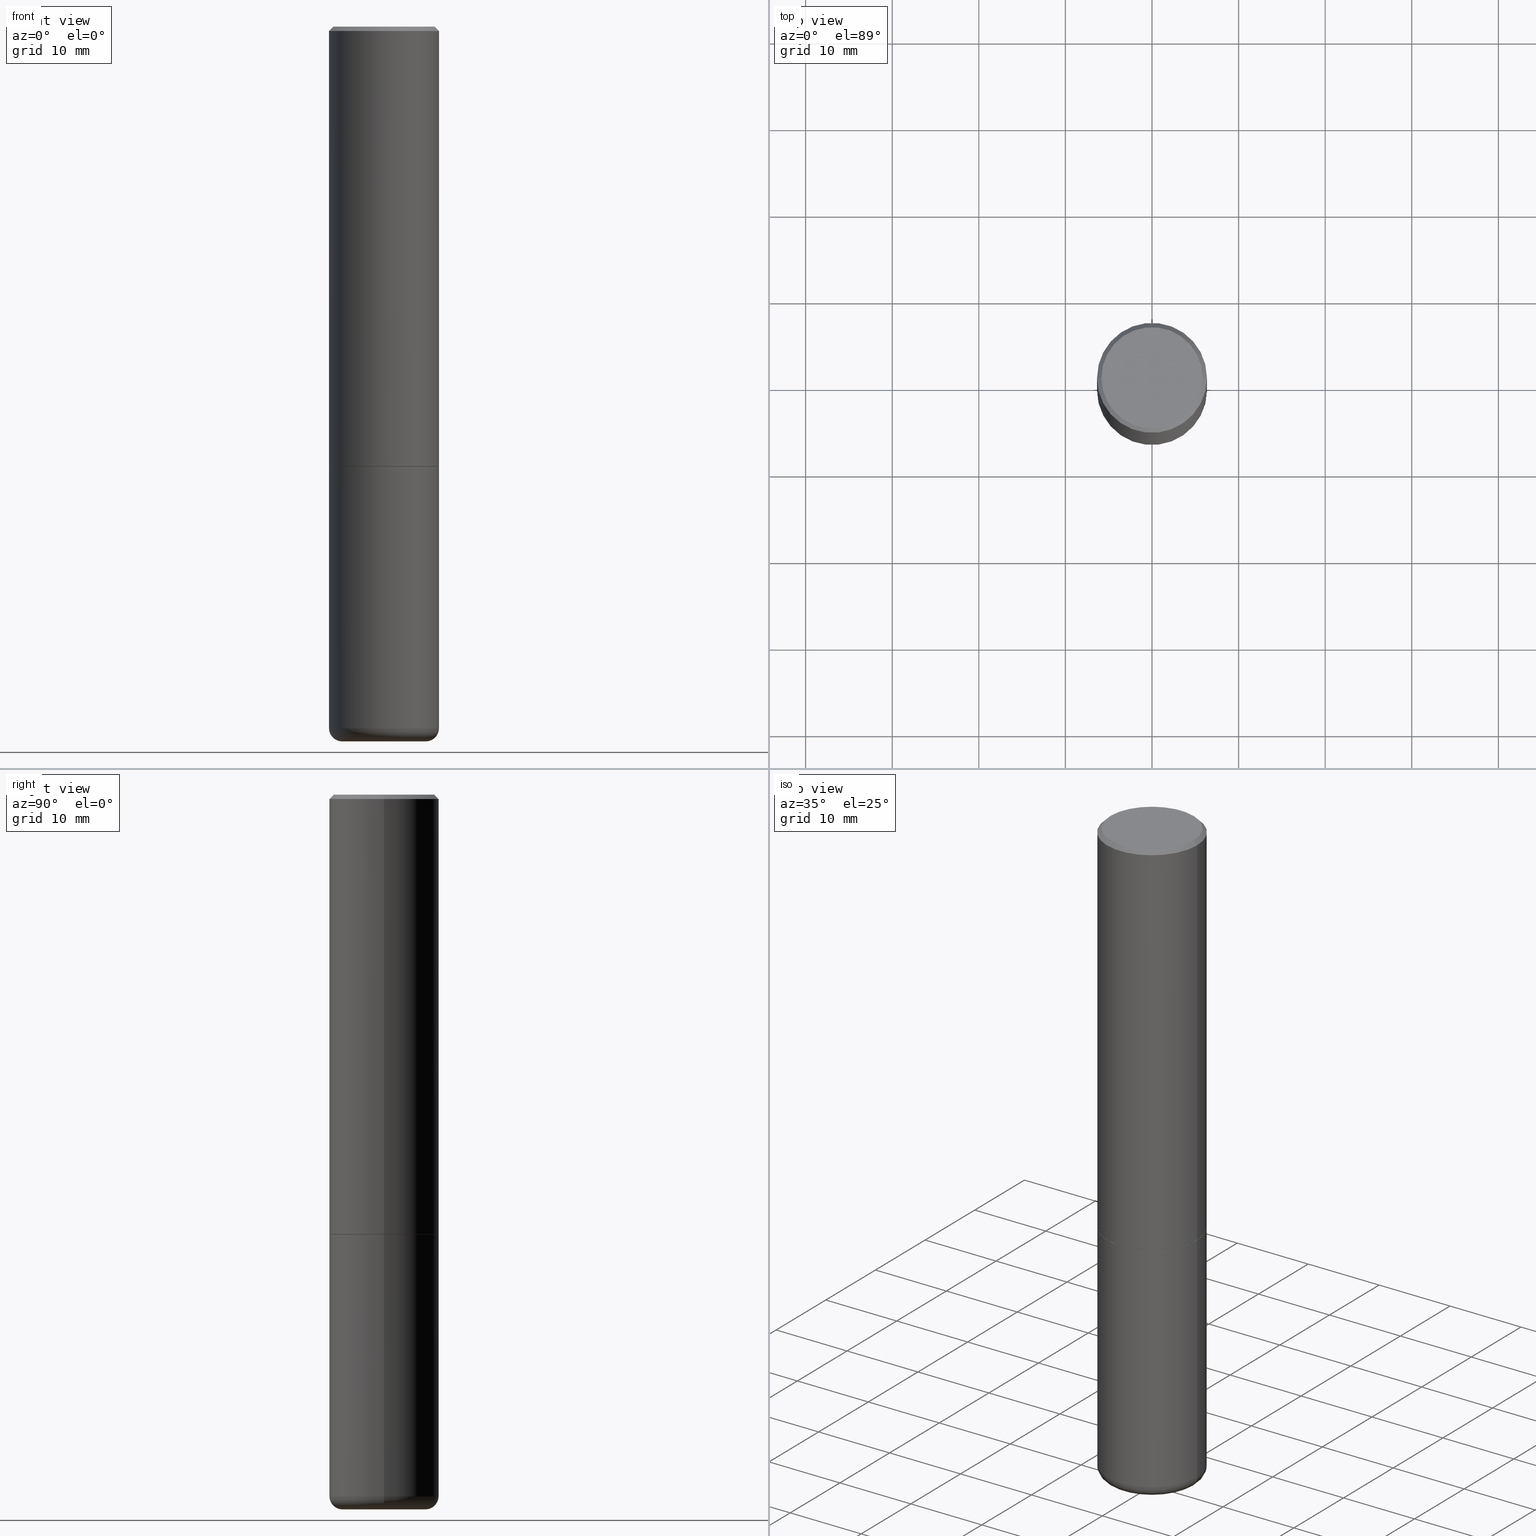
[diagram: canonical four-view strip — front | top / right | iso, engineering-drawing reading convention]
A machine part, canonical four-view strip (front | top / right | iso — engineering-drawing reading convention). The complete STEP part file that produces these views, byte-faithful:
ISO-10303-21;
HEADER;
FILE_DESCRIPTION (( 'STEP AP203' ),
    '1' );
FILE_NAME ('77181.STEP',
    '2024-03-06T16:18:55',
    ( '' ),
    ( '' ),
    'SwSTEP 2.0',
    'SolidWorks 2023',
    '' );
FILE_SCHEMA (( 'CONFIG_CONTROL_DESIGN' ));
ENDSEC;

DATA;
#1 = CARTESIAN_POINT ( 'NONE',  ( 4.890937612370287172E-31, -6.982962677686310098E-17, -0.02000000000000005593 ) ) ;
#2 = EDGE_LOOP ( 'NONE', ( #138, #159, #92, #378 ) ) ;
#3 = CYLINDRICAL_SURFACE ( 'NONE', #415, 0.2500000000000000000 ) ;
#4 = ORIENTED_EDGE ( 'NONE', *, *, #344, .T. ) ;
#5 = VECTOR ( 'NONE', #80, 39.37007874015748143 ) ;
#6 = CLOSED_SHELL ( 'NONE', ( #356, #90, #116, #85, #9, #34 ) ) ;
#7 = AXIS2_PLACEMENT_3D ( 'NONE', #236, #207, #141 ) ;
#8 = LENGTH_MEASURE_WITH_UNIT ( LENGTH_MEASURE( 0.02539999999999999897 ), #169 );
#9 = ADVANCED_FACE ( 'NONE', ( #264 ), #396, .T. ) ;
#10 = FACE_OUTER_BOUND ( 'NONE', #166, .T. ) ;
#11 = DIRECTION ( 'NONE',  ( -2.445468806185136597E-29, 3.491481338843145583E-15, 1.000000000000000000 ) ) ;
#12 = DIRECTION ( 'NONE',  ( 1.000000000000000000, -6.982962677686265133E-15, 4.883557194083112340E-29 ) ) ;
#13 = AXIS2_PLACEMENT_3D ( 'NONE', #325, #11, #273 ) ;
#14 = EDGE_CURVE ( 'NONE', #63, #128, #160, .T. ) ;
#15 = CARTESIAN_POINT ( 'NONE',  ( -0.2500000000000000000, -7.284037234897712778E-15, -2.000000000000000000 ) ) ;
#16 = PLANE ( 'NONE',  #173 ) ;
#17 = COORDINATED_UNIVERSAL_TIME_OFFSET ( 5, 0, .BEHIND. ) ;
#18 = ORIENTED_EDGE ( 'NONE', *, *, #316, .T. ) ;
#19 = CIRCLE ( 'NONE', #25, 0.1899999999999999745 ) ;
#20 = PERSON_AND_ORGANIZATION ( #283, #320 ) ;
#21 = CC_DESIGN_PERSON_AND_ORGANIZATION_ASSIGNMENT ( #150, #86, ( #196 ) ) ;
#22 = APPROVAL_DATE_TIME ( #279, #197 ) ;
#23 = PERSON_AND_ORGANIZATION ( #283, #320 ) ;
#24 = DIRECTION ( 'NONE',  ( -2.445468806185136597E-29, 3.491481338843145583E-15, 1.000000000000000000 ) ) ;
#25 = AXIS2_PLACEMENT_3D ( 'NONE', #271, #298, #44 ) ;
#26 = CARTESIAN_POINT ( 'NONE',  ( 0.1899999999999999745, -1.246458837967002615E-14, -3.189999999999999947 ) ) ;
#27 = ORIENTED_EDGE ( 'NONE', *, *, #14, .F. ) ;
#28 = DIRECTION ( 'NONE',  ( 1.000000000000000000, -6.982962677686265922E-15, 4.876176775795935793E-29 ) ) ;
#29 = EDGE_LOOP ( 'NONE', ( #66, #417 ) ) ;
#30 = PLANE ( 'NONE',  #202 ) ;
#31 = CONICAL_SURFACE ( 'NONE', #115, 0.2489999999999999991, 0.7853981633975507526 ) ;
#32 = ORIENTED_EDGE ( 'NONE', *, *, #344, .F. ) ;
#33 = AXIS2_PLACEMENT_3D ( 'NONE', #163, #24, #102 ) ;
#34 = ADVANCED_FACE ( 'NONE', ( #237 ), #16, .T. ) ;
#35 = FACE_OUTER_BOUND ( 'NONE', #223, .T. ) ;
#36 = ORIENTED_EDGE ( 'NONE', *, *, #151, .T. ) ;
#37 = DIRECTION ( 'NONE',  ( -2.445468806185136597E-29, 3.491481338843145583E-15, 1.000000000000000000 ) ) ;
#38 = ORIENTED_EDGE ( 'NONE', *, *, #379, .F. ) ;
#39 = EDGE_CURVE ( 'NONE', #128, #322, #113, .T. ) ;
#40 = CYLINDRICAL_SURFACE ( 'NONE', #93, 0.2500000000000000000 ) ;
#41 = LOCAL_TIME ( 11, 18, 55.00000000000000000, #308 ) ;
#42 = PRODUCT_DEFINITION_SHAPE ( 'NONE', 'NONE',  #65 ) ;
#43 = DIRECTION ( 'NONE',  ( -2.445468806185136597E-29, 3.491481338843145583E-15, 1.000000000000000000 ) ) ;
#44 = DIRECTION ( 'NONE',  ( 1.000000000000000000, -6.982962677686261977E-15, 0.000000000000000000 ) ) ;
#45 = CARTESIAN_POINT ( 'NONE',  ( 7.947773620101693940E-29, -1.134731435124022443E-14, -3.250000000000000000 ) ) ;
#46 = ADVANCED_FACE ( 'NONE', ( #49 ), #31, .T. ) ;
#47 = CIRCLE ( 'NONE', #59, 0.2500000000000002776 ) ;
#48 = DATE_AND_TIME ( #277, #290 ) ;
#49 = FACE_OUTER_BOUND ( 'NONE', #225, .T. ) ;
#50 = CALENDAR_DATE ( 2024, 6, 3 ) ;
#51 = EDGE_LOOP ( 'NONE', ( #404, #72 ) ) ;
#52 = APPROVAL_ROLE ( '' ) ;
#53 = VECTOR ( 'NONE', #230, 39.37007874015748143 ) ;
#54 = CIRCLE ( 'NONE', #364, 0.2500000000000000000 ) ;
#55 = CALENDAR_DATE ( 2024, 6, 3 ) ;
#56 = EDGE_CURVE ( 'NONE', #99, #133, #270, .T. ) ;
#57 = AXIS2_PLACEMENT_3D ( 'NONE', #182, #149, #241 ) ;
#58 = CARTESIAN_POINT ( 'NONE',  ( 0.1899999999999999745, -1.267407726000061289E-14, -3.250000000000000000 ) ) ;
#59 = AXIS2_PLACEMENT_3D ( 'NONE', #399, #171, #165 ) ;
#60 = ORIENTED_EDGE ( 'NONE', *, *, #156, .F. ) ;
#61 = MANIFOLD_SOLID_BREP ( 'Body-Move/Copy2[1]', #6 ) ;
#62 = CARTESIAN_POINT ( 'NONE',  ( 4.890937612370273194E-29, -6.982962677686291165E-15, -2.000000000000000000 ) ) ;
#63 = VERTEX_POINT ( 'NONE', #75 ) ;
#64 = DIRECTION ( 'NONE',  ( 1.000000000000000000, -6.982962677686270655E-15, 0.000000000000000000 ) ) ;
#65 = PRODUCT_DEFINITION ( 'UNKNOWN', '', #376, #253 ) ;
#66 = ORIENTED_EDGE ( 'NONE', *, *, #170, .T. ) ;
#67 = DIRECTION ( 'NONE',  ( -0.7071067811865465735, 2.468850131082246805E-15, -0.7071067811865484609 ) ) ;
#68 = EDGE_LOOP ( 'NONE', ( #228, #339, #382, #258 ) ) ;
#69 = VECTOR ( 'NONE', #67, 39.37007874015748143 ) ;
#70 = APPROVAL ( #176, 'UNSPECIFIED' ) ;
#71 = CARTESIAN_POINT ( 'NONE',  ( 0.2500000000000000000, -8.728703347107857054E-15, -2.000000000000000000 ) ) ;
#72 = ORIENTED_EDGE ( 'NONE', *, *, #349, .F. ) ;
#73 = EDGE_CURVE ( 'NONE', #254, #278, #363, .T. ) ;
#74 = DIRECTION ( 'NONE',  ( 2.438088387897960049E-29, -3.491481338843145188E-15, -1.000000000000000000 ) ) ;
#75 = CARTESIAN_POINT ( 'NONE',  ( -0.2489999999999999991, -5.208412811295418518E-15, -2.000000000000000000 ) ) ;
#76 = DIRECTION ( 'NONE',  ( 1.000000000000000000, -6.982962677686266711E-15, 4.876176775795935793E-29 ) ) ;
#77 = AXIS2_PLACEMENT_3D ( 'NONE', #329, #206, #401 ) ;
#78 = DIRECTION ( 'NONE',  ( 1.000000000000000000, -6.982962677686266711E-15, 0.000000000000000000 ) ) ;
#79 = DIRECTION ( 'NONE',  ( 1.000000000000000000, -6.982962677686267499E-15, 4.876225828469310563E-29 ) ) ;
#80 = DIRECTION ( 'NONE',  ( 0.7071067811866199593, -2.468850131083015945E-15, 0.7071067811864750752 ) ) ;
#81 = ADVANCED_FACE ( 'NONE', ( #109 ), #167, .T. ) ;
#82 = CARTESIAN_POINT ( 'NONE',  ( 2.087702828670439639E-46, -2.980686340760894400E-32, -8.537024980200822558E-18 ) ) ;
#83 = AXIS2_PLACEMENT_3D ( 'NONE', #333, #43, #238 ) ;
#84 = EDGE_LOOP ( 'NONE', ( #38, #27 ) ) ;
#85 = ADVANCED_FACE ( 'NONE', ( #232 ), #40, .T. ) ;
#86 = PERSON_AND_ORGANIZATION_ROLE ( 'design_owner' ) ;
#87 = FACE_OUTER_BOUND ( 'NONE', #84, .T. ) ;
#88 = AXIS2_PLACEMENT_3D ( 'NONE', #327, #335, #78 ) ;
#89 = CALENDAR_DATE ( 2024, 6, 3 ) ;
#90 = ADVANCED_FACE ( 'NONE', ( #299 ), #381, .T. ) ;
#91 = DIRECTION ( 'NONE',  ( -2.445468806185136597E-29, 3.491481338843145583E-15, 1.000000000000000000 ) ) ;
#92 = ORIENTED_EDGE ( 'NONE', *, *, #175, .T. ) ;
#93 = AXIS2_PLACEMENT_3D ( 'NONE', #172, #362, #76 ) ;
#94 = CIRCLE ( 'NONE', #289, 0.2500000000000002776 ) ;
#95 = CARTESIAN_POINT ( 'NONE',  ( -0.2500000000000000000, 1.776356839400250465E-15, -1.229733772563726445E-29 ) ) ;
#96 = VERTEX_POINT ( 'NONE', #304 ) ;
#97 = ADVANCED_FACE ( 'NONE', ( #87 ), #30, .F. ) ;
#98 = DIRECTION ( 'NONE',  ( -2.445468806185136597E-29, 3.491481338843145583E-15, 1.000000000000000000 ) ) ;
#99 = VERTEX_POINT ( 'NONE', #293 ) ;
#100 = DIRECTION ( 'NONE',  ( -2.445468806185136597E-29, 3.491481338843145583E-15, 1.000000000000000000 ) ) ;
#101 = ORIENTED_EDGE ( 'NONE', *, *, #288, .F. ) ;
#102 = DIRECTION ( 'NONE',  ( 1.000000000000000000, -6.982962677686261977E-15, 0.000000000000000000 ) ) ;
#103 = ORIENTED_EDGE ( 'NONE', *, *, #208, .T. ) ;
#104 = CIRCLE ( 'NONE', #33, 0.1899999999999999745 ) ;
#105 = CC_DESIGN_PERSON_AND_ORGANIZATION_ASSIGNMENT ( #209, #336, ( #124 ) ) ;
#106 = FACE_OUTER_BOUND ( 'NONE', #162, .T. ) ;
#107 = CARTESIAN_POINT ( 'NONE',  ( 0.2499999999999999167, -1.784954126219745400E-15, -0.02000000000000005593 ) ) ;
#108 = DIRECTION ( 'NONE',  ( -2.445468806185136597E-29, 3.491481338843145583E-15, 1.000000000000000000 ) ) ;
#109 = FACE_OUTER_BOUND ( 'NONE', #68, .T. ) ;
#110 = VECTOR ( 'NONE', #350, 39.37007874015748143 ) ;
#111 = CARTESIAN_POINT ( 'NONE',  ( 0.2500000000000000000, -1.745740669421566678E-15, 1.219044193948983948E-29 ) ) ;
#112 = DIRECTION ( 'NONE',  ( -2.445468806185136597E-29, 3.491481338843145583E-15, 1.000000000000000000 ) ) ;
#113 = LINE ( 'NONE', #305, #5 ) ;
#114 = DATE_AND_TIME ( #146, #118 ) ;
#115 = AXIS2_PLACEMENT_3D ( 'NONE', #177, #392, #235 ) ;
#116 = ADVANCED_FACE ( 'NONE', ( #321 ), #286, .F. ) ;
#117 = AXIS2_PLACEMENT_3D ( 'NONE', #370, #112, #269 ) ;
#118 = LOCAL_TIME ( 11, 18, 55.00000000000000000, #17 ) ;
#119 = APPROVAL_STATUS ( 'not_yet_approved' ) ;
#120 = ORIENTED_EDGE ( 'NONE', *, *, #175, .F. ) ;
#121 = SECURITY_CLASSIFICATION_LEVEL ( 'unclassified' ) ;
#122 = ORIENTED_EDGE ( 'NONE', *, *, #147, .T. ) ;
#123 = APPROVAL_DATE_TIME ( #406, #296 ) ;
#124 = SECURITY_CLASSIFICATION ( '', '', #121 ) ;
#125 = PERSON_AND_ORGANIZATION_ROLE ( 'creator' ) ;
#126 = LINE ( 'NONE', #226, #69 ) ;
#127 = DIRECTION ( 'NONE',  ( 1.000000000000000000, -6.982962677686266711E-15, 0.000000000000000000 ) ) ;
#128 = VERTEX_POINT ( 'NONE', #346 ) ;
#129 = CIRCLE ( 'NONE', #397, 0.2500000000000000000 ) ;
#130 = DIRECTION ( 'NONE',  ( 1.000000000000000000, -6.982962677686266711E-15, 0.000000000000000000 ) ) ;
#131 = EDGE_LOOP ( 'NONE', ( #36, #373, #285, #157 ) ) ;
#132 = DIRECTION ( 'NONE',  ( -0.7071067811866199593, 7.493145998870616062E-15, 0.7071067811864750752 ) ) ;
#133 = VERTEX_POINT ( 'NONE', #386 ) ;
#134 = CARTESIAN_POINT ( 'NONE',  ( -0.2489999999999999991, -5.213711265643641709E-15, -2.000000000000000000 ) ) ;
#135 = ADVANCED_FACE ( 'NONE', ( #35 ), #352, .T. ) ;
#136 = ORIENTED_EDGE ( 'NONE', *, *, #156, .T. ) ;
#137 = DIRECTION ( 'NONE',  ( 2.445468806185136597E-29, -3.491481338843145583E-15, -1.000000000000000000 ) ) ;
#138 = ORIENTED_EDGE ( 'NONE', *, *, #324, .F. ) ;
#139 = AXIS2_PLACEMENT_3D ( 'NONE', #295, #137, #266 ) ;
#140 = FACE_OUTER_BOUND ( 'NONE', #347, .T. ) ;
#141 = DIRECTION ( 'NONE',  ( 1.000000000000000000, -6.982962677686266711E-15, 4.876176775795935793E-29 ) ) ;
#142 = DIRECTION ( 'NONE',  ( 7.105427357601001859E-15, 1.000000000000000000, -3.491481338843145583E-15 ) ) ;
#143 = LINE ( 'NONE', #111, #153 ) ;
#144 = CARTESIAN_POINT ( 'NONE',  ( 0.2500000000000002776, -8.725211865769015625E-15, -1.998999999999999888 ) ) ;
#145 = DIRECTION ( 'NONE',  ( -1.000000000000000000, 7.105427357600997914E-15, 0.000000000000000000 ) ) ;
#146 = CALENDAR_DATE ( 2024, 6, 3 ) ;
#147 = EDGE_CURVE ( 'NONE', #220, #414, #281, .T. ) ;
#148 = LOCAL_TIME ( 11, 18, 55.00000000000000000, #152 ) ;
#149 = DIRECTION ( 'NONE',  ( 0.000000000000000000, 0.000000000000000000, 1.000000000000000000 ) ) ;
#150 = PERSON_AND_ORGANIZATION ( #283, #320 ) ;
#151 = EDGE_CURVE ( 'NONE', #220, #254, #104, .T. ) ;
#152 = COORDINATED_UNIVERSAL_TIME_OFFSET ( 5, 0, .BEHIND. ) ;
#153 = VECTOR ( 'NONE', #368, 39.37007874015748143 ) ;
#154 = LINE ( 'NONE', #95, #110 ) ;
#155 = CARTESIAN_POINT ( 'NONE',  ( 4.888492143564087591E-29, -6.979471196347447369E-15, -1.998999999999999888 ) ) ;
#156 = EDGE_CURVE ( 'NONE', #96, #178, #354, .T. ) ;
#157 = ORIENTED_EDGE ( 'NONE', *, *, #147, .F. ) ;
#158 = DIRECTION ( 'NONE',  ( 1.000000000000000000, -6.982962677686274599E-15, 0.000000000000000000 ) ) ;
#159 = ORIENTED_EDGE ( 'NONE', *, *, #56, .T. ) ;
#160 = CIRCLE ( 'NONE', #211, 0.2489999999999999991 ) ;
#161 = DIRECTION ( 'NONE',  ( -1.000000000000000000, 6.982962677686265922E-15, -4.876176775795935793E-29 ) ) ;
#162 = EDGE_LOOP ( 'NONE', ( #4, #292 ) ) ;
#163 = CARTESIAN_POINT ( 'NONE',  ( 7.947773620101693940E-29, -1.134731435124022443E-14, -3.250000000000000000 ) ) ;
#164 = VERTEX_POINT ( 'NONE', #222 ) ;
#165 = DIRECTION ( 'NONE',  ( 1.000000000000000000, -6.982962677686266711E-15, 0.000000000000000000 ) ) ;
#166 = EDGE_LOOP ( 'NONE', ( #188, #136, #120, #317 ) ) ;
#167 = CONICAL_SURFACE ( 'NONE', #88, 0.2489999999999999991, 0.7853981633975507526 ) ;
#168 = AXIS2_PLACEMENT_3D ( 'NONE', #393, #302, #233 ) ;
#169 =( LENGTH_UNIT ( ) NAMED_UNIT ( * ) SI_UNIT ( $, .METRE. ) );
#170 = EDGE_CURVE ( 'NONE', #186, #319, #54, .T. ) ;
#171 = DIRECTION ( 'NONE',  ( -2.445468806185136597E-29, 3.491481338843145583E-15, 1.000000000000000000 ) ) ;
#172 = CARTESIAN_POINT ( 'NONE',  ( 0.000000000000000000, 0.000000000000000000, 0.000000000000000000 ) ) ;
#173 = AXIS2_PLACEMENT_3D ( 'NONE', #45, #369, #338 ) ;
#174 = VECTOR ( 'NONE', #132, 39.37007874015748143 ) ;
#175 = EDGE_CURVE ( 'NONE', #133, #178, #357, .T. ) ;
#176 = APPROVAL_STATUS ( 'not_yet_approved' ) ;
#177 = CARTESIAN_POINT ( 'NONE',  ( 4.890937612370273194E-29, -6.982962677686291165E-15, -2.000000000000000000 ) ) ;
#178 = VERTEX_POINT ( 'NONE', #284 ) ;
#179 = DATE_AND_TIME ( #50, #148 ) ;
#180 = EDGE_LOOP ( 'NONE', ( #314, #412, #122, #326 ) ) ;
#181 = AXIS2_PLACEMENT_3D ( 'NONE', #82, #108, #79 ) ;
#182 = CARTESIAN_POINT ( 'NONE',  ( 0.000000000000000000, 0.000000000000000000, 0.000000000000000000 ) ) ;
#183 = MECHANICAL_CONTEXT ( 'NONE', #323, 'mechanical' ) ;
#184 = EDGE_CURVE ( 'NONE', #63, #96, #411, .T. ) ;
#185 = DIRECTION ( 'NONE',  ( 1.000000000000000000, -6.982962677686266711E-15, 0.000000000000000000 ) ) ;
#186 = VERTEX_POINT ( 'NONE', #71 ) ;
#187 = DIRECTION ( 'NONE',  ( -2.445468806185136597E-29, 3.491481338843145583E-15, 1.000000000000000000 ) ) ;
#188 = ORIENTED_EDGE ( 'NONE', *, *, #300, .T. ) ;
#189 = DIRECTION ( 'NONE',  ( -6.982962677686266711E-15, -1.000000000000000000, 3.491481338843145583E-15 ) ) ;
#190 = EDGE_LOOP ( 'NONE', ( #103, #355, #199, #387 ) ) ;
#191 = AXIS2_PLACEMENT_3D ( 'NONE', #26, #189, #158 ) ;
#192 = DIRECTION ( 'NONE',  ( 1.000000000000000000, -6.982962677686270655E-15, 0.000000000000000000 ) ) ;
#193 = APPROVAL_PERSON_ORGANIZATION ( #276, #70, #217 ) ;
#194 = APPLICATION_CONTEXT ( 'configuration controlled 3d designs of mechanical parts and assemblies' ) ;
#195 = CARTESIAN_POINT ( 'NONE',  ( 4.890937612370273194E-29, -6.982962677686291165E-15, -2.000000000000000000 ) ) ;
#196 = PRODUCT ( '77181', '77181', '', ( #183 ) ) ;
#197 = APPROVAL ( #374, 'UNSPECIFIED' ) ;
#198 = CARTESIAN_POINT ( 'NONE',  ( 7.801045491730585789E-29, -1.113782547090963453E-14, -3.189999999999999947 ) ) ;
#199 = ORIENTED_EDGE ( 'NONE', *, *, #170, .F. ) ;
#200 = DIRECTION ( 'NONE',  ( -1.000000000000000000, 6.982962677686265922E-15, -4.876176775795935793E-29 ) ) ;
#201 = CARTESIAN_POINT ( 'NONE',  ( -0.1899999999999999745, -9.787794272965444556E-15, -3.189999999999999947 ) ) ;
#202 = AXIS2_PLACEMENT_3D ( 'NONE', #282, #380, #28 ) ;
#203 =( NAMED_UNIT ( * ) SI_UNIT ( $, .STERADIAN. ) SOLID_ANGLE_UNIT ( ) );
#204 = LOCAL_TIME ( 11, 18, 55.00000000000000000, #343 ) ;
#205 = FACE_OUTER_BOUND ( 'NONE', #190, .T. ) ;
#206 = DIRECTION ( 'NONE',  ( -2.445468806185136597E-29, 3.491481338843145583E-15, 1.000000000000000000 ) ) ;
#207 = DIRECTION ( 'NONE',  ( -2.445468806185136597E-29, 3.491481338843145583E-15, 1.000000000000000000 ) ) ;
#208 = EDGE_CURVE ( 'NONE', #414, #278, #212, .T. ) ;
#209 = PERSON_AND_ORGANIZATION ( #283, #320 ) ;
#210 = DIRECTION ( 'NONE',  ( 1.000000000000000000, -6.982962677686266711E-15, 0.000000000000000000 ) ) ;
#211 = AXIS2_PLACEMENT_3D ( 'NONE', #195, #331, #210 ) ;
#212 = CIRCLE ( 'NONE', #240, 0.2500000000000000000 ) ;
#213 = APPROVAL_ROLE ( '' ) ;
#214 = PERSON_AND_ORGANIZATION ( #283, #320 ) ;
#215 = PERSON_AND_ORGANIZATION ( #283, #320 ) ;
#216 = VECTOR ( 'NONE', #358, 39.37007874015748143 ) ;
#217 = APPROVAL_ROLE ( '' ) ;
#218 = ORIENTED_EDGE ( 'NONE', *, *, #231, .T. ) ;
#219 = CARTESIAN_POINT ( 'NONE',  ( -0.2499999999999999722, -9.361468631509382488E-15, -3.189999999999999947 ) ) ;
#220 = VERTEX_POINT ( 'NONE', #58 ) ;
#221 = APPROVAL_PERSON_ORGANIZATION ( #214, #197, #52 ) ;
#222 = CARTESIAN_POINT ( 'NONE',  ( -0.2299999999999999267, 1.640996229256272125E-15, -8.537024980212177841E-18 ) ) ;
#223 = EDGE_LOOP ( 'NONE', ( #60, #353, #218, #307 ) ) ;
#224 = DIRECTION ( 'NONE',  ( -2.445468806185136597E-29, 3.491481338843145583E-15, 1.000000000000000000 ) ) ;
#225 = EDGE_LOOP ( 'NONE', ( #294, #287, #359, #262 ) ) ;
#226 = CARTESIAN_POINT ( 'NONE',  ( -0.2499999999999999167, 1.675911042644703182E-15, -0.02000000000000005593 ) ) ;
#227 = CARTESIAN_POINT ( 'NONE',  ( -0.2500000000000001110, 1.776356839400251254E-15, -1.229733772563727006E-29 ) ) ;
#228 = ORIENTED_EDGE ( 'NONE', *, *, #184, .F. ) ;
#229 = PLANE ( 'NONE',  #256 ) ;
#230 = DIRECTION ( 'NONE',  ( 0.7071067811865465735, -7.319954787623252890E-15, -0.7071067811865484609 ) ) ;
#231 = EDGE_CURVE ( 'NONE', #322, #133, #263, .T. ) ;
#232 = FACE_OUTER_BOUND ( 'NONE', #345, .T. ) ;
#233 = DIRECTION ( 'NONE',  ( -1.000000000000000000, 6.982962677686267499E-15, 0.000000000000000000 ) ) ;
#234 = AXIS2_PLACEMENT_3D ( 'NONE', #384, #98, #413 ) ;
#235 = DIRECTION ( 'NONE',  ( 1.000000000000000000, -6.982962677686266711E-15, 0.000000000000000000 ) ) ;
#236 = CARTESIAN_POINT ( 'NONE',  ( 0.000000000000000000, 0.000000000000000000, 0.000000000000000000 ) ) ;
#237 = FACE_OUTER_BOUND ( 'NONE', #51, .T. ) ;
#238 = DIRECTION ( 'NONE',  ( 1.000000000000000000, -6.982962677686266711E-15, 0.000000000000000000 ) ) ;
#239 =( GEOMETRIC_REPRESENTATION_CONTEXT ( 3 ) GLOBAL_UNCERTAINTY_ASSIGNED_CONTEXT ( ( #409 ) ) GLOBAL_UNIT_ASSIGNED_CONTEXT ( ( #267, #361, #203 ) ) REPRESENTATION_CONTEXT ( 'NONE', 'WORKASPACE' ) );
#240 = AXIS2_PLACEMENT_3D ( 'NONE', #198, #100, #64 ) ;
#241 = DIRECTION ( 'NONE',  ( 1.000000000000000000, 0.000000000000000000, 0.000000000000000000 ) ) ;
#242 = DIMENSIONAL_EXPONENTS ( 1.000000000000000000, 0.000000000000000000, 0.000000000000000000, 0.000000000000000000, 0.000000000000000000, 0.000000000000000000, 0.000000000000000000 ) ;
#243 = ORIENTED_EDGE ( 'NONE', *, *, #56, .F. ) ;
#244 = EDGE_CURVE ( 'NONE', #278, #319, #154, .T. ) ;
#245 = COORDINATED_UNIVERSAL_TIME_OFFSET ( 5, 0, .BEHIND. ) ;
#246 = ORIENTED_EDGE ( 'NONE', *, *, #244, .F. ) ;
#247 = PERSON_AND_ORGANIZATION_ROLE ( 'design_supplier' ) ;
#248 = CC_DESIGN_APPROVAL ( #296, ( #376 ) ) ;
#249 = APPLICATION_PROTOCOL_DEFINITION ( 'international standard', 'config_control_design', 1994, #194 ) ;
#250 = CC_DESIGN_PERSON_AND_ORGANIZATION_ASSIGNMENT ( #340, #247, ( #376 ) ) ;
#251 = CARTESIAN_POINT ( 'NONE',  ( 4.890937612370273194E-29, -6.982962677686291165E-15, -2.000000000000000000 ) ) ;
#252 = DIRECTION ( 'NONE',  ( -2.445468806185136597E-29, 3.491481338843145583E-15, 1.000000000000000000 ) ) ;
#253 = DESIGN_CONTEXT ( 'detailed design', #194, 'design' ) ;
#254 = VERTEX_POINT ( 'NONE', #410 ) ;
#255 = AXIS2_PLACEMENT_3D ( 'NONE', #389, #268, #12 ) ;
#256 = AXIS2_PLACEMENT_3D ( 'NONE', #360, #74, #200 ) ;
#257 = CARTESIAN_POINT ( 'NONE',  ( 0.2500000000000001110, -1.745740669421567467E-15, 1.219044193948984509E-29 ) ) ;
#258 = ORIENTED_EDGE ( 'NONE', *, *, #394, .F. ) ;
#259 = CC_DESIGN_DATE_AND_TIME_ASSIGNMENT ( #179, #407, ( #65 ) ) ;
#260 = PRODUCT_RELATED_PRODUCT_CATEGORY ( 'detail', '', ( #196 ) ) ;
#261 = DIRECTION ( 'NONE',  ( 2.438088387897960049E-29, -3.491481338843145188E-15, -1.000000000000000000 ) ) ;
#262 = ORIENTED_EDGE ( 'NONE', *, *, #39, .F. ) ;
#263 = LINE ( 'NONE', #257, #272 ) ;
#264 = FACE_OUTER_BOUND ( 'NONE', #180, .T. ) ;
#265 = CIRCLE ( 'NONE', #13, 0.2299999999999999267 ) ;
#266 = DIRECTION ( 'NONE',  ( -1.000000000000000000, 6.982962677686267499E-15, 0.000000000000000000 ) ) ;
#267 =( CONVERSION_BASED_UNIT ( 'INCH', #8 ) LENGTH_UNIT ( ) NAMED_UNIT ( #242 ) );
#268 = DIRECTION ( 'NONE',  ( -2.445468806185136597E-29, 3.491481338843145583E-15, 1.000000000000000000 ) ) ;
#269 = DIRECTION ( 'NONE',  ( 1.000000000000000000, -6.982962677686267499E-15, 0.000000000000000000 ) ) ;
#270 = LINE ( 'NONE', #107, #53 ) ;
#271 = CARTESIAN_POINT ( 'NONE',  ( 7.947773620101693940E-29, -1.134731435124022443E-14, -3.250000000000000000 ) ) ;
#272 = VECTOR ( 'NONE', #388, 39.37007874015748143 ) ;
#273 = DIRECTION ( 'NONE',  ( 1.000000000000000000, -6.982962677686267499E-15, 4.876225828469310563E-29 ) ) ;
#274 = EDGE_CURVE ( 'NONE', #164, #178, #126, .T. ) ;
#275 = SHAPE_DEFINITION_REPRESENTATION ( #42, #395 ) ;
#276 = PERSON_AND_ORGANIZATION ( #283, #320 ) ;
#277 = CALENDAR_DATE ( 2024, 6, 3 ) ;
#278 = VERTEX_POINT ( 'NONE', #219 ) ;
#279 = DATE_AND_TIME ( #55, #41 ) ;
#280 = EDGE_CURVE ( 'NONE', #278, #414, #310, .T. ) ;
#281 = CIRCLE ( 'NONE', #191, 0.05999999999999994227 ) ;
#282 = CARTESIAN_POINT ( 'NONE',  ( 4.890937612370273194E-29, -6.982962677686291165E-15, -2.000000000000000000 ) ) ;
#283 = PERSON ( 'UNSPECIFIED', 'UNSPECIFIED', 'UNSPECIFIED', ('UNSPECIFIED'), ('UNSPECIFIED'), ('UNSPECIFIED') ) ;
#284 = CARTESIAN_POINT ( 'NONE',  ( -0.2499999999999999167, 1.675911042644703182E-15, -0.02000000000000005593 ) ) ;
#285 = ORIENTED_EDGE ( 'NONE', *, *, #208, .F. ) ;
#286 = PLANE ( 'NONE',  #309 ) ;
#287 = ORIENTED_EDGE ( 'NONE', *, *, #184, .T. ) ;
#288 = EDGE_CURVE ( 'NONE', #319, #186, #129, .T. ) ;
#289 = AXIS2_PLACEMENT_3D ( 'NONE', #155, #187, #127 ) ;
#290 = LOCAL_TIME ( 11, 18, 55.00000000000000000, #245 ) ;
#291 = CARTESIAN_POINT ( 'NONE',  ( 7.801045491730585789E-29, -1.113782547090963453E-14, -3.189999999999999947 ) ) ;
#292 = ORIENTED_EDGE ( 'NONE', *, *, #324, .T. ) ;
#293 = CARTESIAN_POINT ( 'NONE',  ( 0.2299999999999999267, -1.681434332853598617E-15, -8.537024980189327067E-18 ) ) ;
#294 = ORIENTED_EDGE ( 'NONE', *, *, #379, .T. ) ;
#295 = CARTESIAN_POINT ( 'NONE',  ( 4.890937612370287172E-31, -6.982962677686310098E-17, -0.02000000000000005593 ) ) ;
#296 = APPROVAL ( #119, 'UNSPECIFIED' ) ;
#297 = ORIENTED_EDGE ( 'NONE', *, *, #274, .T. ) ;
#298 = DIRECTION ( 'NONE',  ( -2.445468806185136597E-29, 3.491481338843145583E-15, 1.000000000000000000 ) ) ;
#299 = FACE_OUTER_BOUND ( 'NONE', #131, .T. ) ;
#300 = EDGE_CURVE ( 'NONE', #322, #96, #94, .T. ) ;
#301 = AXIS2_PLACEMENT_3D ( 'NONE', #201, #142, #145 ) ;
#302 = DIRECTION ( 'NONE',  ( 2.445468806185136597E-29, -3.491481338843145583E-15, -1.000000000000000000 ) ) ;
#303 = CC_DESIGN_APPROVAL ( #197, ( #65 ) ) ;
#304 = CARTESIAN_POINT ( 'NONE',  ( -0.2500000000000002776, -1.748293572161900530E-15, -1.998999999999999888 ) ) ;
#305 = CARTESIAN_POINT ( 'NONE',  ( 0.2489999999999999991, -8.721720384430171040E-15, -2.000000000000000000 ) ) ;
#306 = ADVANCED_FACE ( 'NONE', ( #315 ), #408, .T. ) ;
#307 = ORIENTED_EDGE ( 'NONE', *, *, #316, .F. ) ;
#308 = COORDINATED_UNIVERSAL_TIME_OFFSET ( 5, 0, .BEHIND. ) ;
#309 = AXIS2_PLACEMENT_3D ( 'NONE', #318, #261, #161 ) ;
#310 = CIRCLE ( 'NONE', #337, 0.2500000000000000000 ) ;
#311 = APPROVAL_DATE_TIME ( #114, #70 ) ;
#312 = CONICAL_SURFACE ( 'NONE', #139, 0.2499999999999999167, 0.7853981633974469467 ) ;
#313 = DIRECTION ( 'NONE',  ( -2.445468806185136597E-29, 3.491481338843145583E-15, 1.000000000000000000 ) ) ;
#314 = ORIENTED_EDGE ( 'NONE', *, *, #73, .F. ) ;
#315 = FACE_OUTER_BOUND ( 'NONE', #2, .T. ) ;
#316 = EDGE_CURVE ( 'NONE', #178, #133, #342, .T. ) ;
#317 = ORIENTED_EDGE ( 'NONE', *, *, #231, .F. ) ;
#318 = CARTESIAN_POINT ( 'NONE',  ( 3.364826205900701146E-29, -9.168441072617700951E-15, -2.000000000000000000 ) ) ;
#319 = VERTEX_POINT ( 'NONE', #15 ) ;
#320 = ORGANIZATION ( 'UNSPECIFIED', 'UNSPECIFIED', '' ) ;
#321 = FACE_OUTER_BOUND ( 'NONE', #29, .T. ) ;
#322 = VERTEX_POINT ( 'NONE', #144 ) ;
#323 = APPLICATION_CONTEXT ( 'configuration controlled 3d designs of mechanical parts and assemblies' ) ;
#324 = EDGE_CURVE ( 'NONE', #99, #164, #372, .T. ) ;
#325 = CARTESIAN_POINT ( 'NONE',  ( 2.087702828670439639E-46, -2.980686340760894400E-32, -8.537024980200822558E-18 ) ) ;
#326 = ORIENTED_EDGE ( 'NONE', *, *, #280, .F. ) ;
#327 = CARTESIAN_POINT ( 'NONE',  ( 4.890937612370273194E-29, -6.982962677686291165E-15, -2.000000000000000000 ) ) ;
#328 = CC_DESIGN_SECURITY_CLASSIFICATION ( #124, ( #376 ) ) ;
#329 = CARTESIAN_POINT ( 'NONE',  ( 7.801045491730585789E-29, -1.113782547090963453E-14, -3.189999999999999947 ) ) ;
#330 = CARTESIAN_POINT ( 'NONE',  ( 0.2499999999999999722, -1.288356614033120121E-14, -3.189999999999999947 ) ) ;
#331 = DIRECTION ( 'NONE',  ( -2.445468806185136597E-29, 3.491481338843145583E-15, 1.000000000000000000 ) ) ;
#332 = CC_DESIGN_PERSON_AND_ORGANIZATION_ASSIGNMENT ( #215, #377, ( #376 ) ) ;
#333 = CARTESIAN_POINT ( 'NONE',  ( 4.890937612370273194E-29, -6.982962677686291165E-15, -2.000000000000000000 ) ) ;
#334 = MANIFOLD_SOLID_BREP ( 'Body-Move/Copy2[2]', #341 ) ;
#335 = DIRECTION ( 'NONE',  ( -2.445468806185136597E-29, 3.491481338843145583E-15, 1.000000000000000000 ) ) ;
#336 = PERSON_AND_ORGANIZATION_ROLE ( 'classification_officer' ) ;
#337 = AXIS2_PLACEMENT_3D ( 'NONE', #291, #252, #192 ) ;
#338 = DIRECTION ( 'NONE',  ( -1.000000000000000000, 6.982962677686265922E-15, -4.876176775795935793E-29 ) ) ;
#339 = ORIENTED_EDGE ( 'NONE', *, *, #14, .T. ) ;
#340 = PERSON_AND_ORGANIZATION ( #283, #320 ) ;
#341 = CLOSED_SHELL ( 'NONE', ( #46, #375, #306, #400, #135, #81, #97, #418 ) ) ;
#342 = CIRCLE ( 'NONE', #117, 0.2499999999999999167 ) ;
#343 = COORDINATED_UNIVERSAL_TIME_OFFSET ( 5, 0, .BEHIND. ) ;
#344 = EDGE_CURVE ( 'NONE', #164, #99, #265, .T. ) ;
#345 = EDGE_LOOP ( 'NONE', ( #246, #351, #385, #101 ) ) ;
#346 = CARTESIAN_POINT ( 'NONE',  ( 0.2489999999999999991, -8.721720384430171040E-15, -2.000000000000000000 ) ) ;
#347 = EDGE_LOOP ( 'NONE', ( #243, #32, #297, #18 ) ) ;
#348 = AXIS2_PLACEMENT_3D ( 'NONE', #1, #224, #416 ) ;
#349 = EDGE_CURVE ( 'NONE', #254, #220, #19, .T. ) ;
#350 = DIRECTION ( 'NONE',  ( -2.445468806185136877E-29, 3.491481338843145188E-15, 1.000000000000000000 ) ) ;
#351 = ORIENTED_EDGE ( 'NONE', *, *, #280, .T. ) ;
#352 = CYLINDRICAL_SURFACE ( 'NONE', #234, 0.2500000000000001110 ) ;
#353 = ORIENTED_EDGE ( 'NONE', *, *, #394, .T. ) ;
#354 = LINE ( 'NONE', #227, #216 ) ;
#355 = ORIENTED_EDGE ( 'NONE', *, *, #244, .T. ) ;
#356 = ADVANCED_FACE ( 'NONE', ( #205 ), #3, .T. ) ;
#357 = CIRCLE ( 'NONE', #348, 0.2499999999999999167 ) ;
#358 = DIRECTION ( 'NONE',  ( -2.445468806185136877E-29, 3.491481338843145188E-15, 1.000000000000000000 ) ) ;
#359 = ORIENTED_EDGE ( 'NONE', *, *, #300, .F. ) ;
#360 = CARTESIAN_POINT ( 'NONE',  ( 1.606081415867840870E-15, 0.2299999999999999267, -8.073092204240237214E-16 ) ) ;
#361 =( NAMED_UNIT ( * ) PLANE_ANGLE_UNIT ( ) SI_UNIT ( $, .RADIAN. ) );
#362 = DIRECTION ( 'NONE',  ( -2.445468806185136597E-29, 3.491481338843145583E-15, 1.000000000000000000 ) ) ;
#363 = CIRCLE ( 'NONE', #301, 0.05999999999999994227 ) ;
#364 = AXIS2_PLACEMENT_3D ( 'NONE', #62, #313, #130 ) ;
#365 = CC_DESIGN_APPROVAL ( #70, ( #124 ) ) ;
#366 = CARTESIAN_POINT ( 'NONE',  ( 0.000000000000000000, 0.000000000000000000, 0.000000000000000000 ) ) ;
#367 = EDGE_CURVE ( 'NONE', #414, #186, #143, .T. ) ;
#368 = DIRECTION ( 'NONE',  ( -2.445468806185136877E-29, 3.491481338843145188E-15, 1.000000000000000000 ) ) ;
#369 = DIRECTION ( 'NONE',  ( 2.438088387897960049E-29, -3.491481338843145188E-15, -1.000000000000000000 ) ) ;
#370 = CARTESIAN_POINT ( 'NONE',  ( 4.890937612370287172E-31, -6.982962677686310098E-17, -0.02000000000000005593 ) ) ;
#371 = CC_DESIGN_DATE_AND_TIME_ASSIGNMENT ( #48, #403, ( #124 ) ) ;
#372 = CIRCLE ( 'NONE', #181, 0.2299999999999999267 ) ;
#373 = ORIENTED_EDGE ( 'NONE', *, *, #73, .T. ) ;
#374 = APPROVAL_STATUS ( 'not_yet_approved' ) ;
#375 = ADVANCED_FACE ( 'NONE', ( #10 ), #391, .T. ) ;
#376 = PRODUCT_DEFINITION_FORMATION_WITH_SPECIFIED_SOURCE ( 'ANY', '', #196, .NOT_KNOWN. ) ;
#377 = PERSON_AND_ORGANIZATION_ROLE ( 'creator' ) ;
#378 = ORIENTED_EDGE ( 'NONE', *, *, #274, .F. ) ;
#379 = EDGE_CURVE ( 'NONE', #128, #63, #390, .T. ) ;
#380 = DIRECTION ( 'NONE',  ( -2.438088387897960049E-29, 3.491481338843145188E-15, 1.000000000000000000 ) ) ;
#381 = TOROIDAL_SURFACE ( 'NONE', #77, 0.1899999999999999745, 0.05999999999999995615 ) ;
#382 = ORIENTED_EDGE ( 'NONE', *, *, #39, .T. ) ;
#383 = APPROVAL_PERSON_ORGANIZATION ( #23, #296, #213 ) ;
#384 = CARTESIAN_POINT ( 'NONE',  ( 0.000000000000000000, 0.000000000000000000, 0.000000000000000000 ) ) ;
#385 = ORIENTED_EDGE ( 'NONE', *, *, #367, .T. ) ;
#386 = CARTESIAN_POINT ( 'NONE',  ( 0.2499999999999999167, -1.784954126219745400E-15, -0.02000000000000005593 ) ) ;
#387 = ORIENTED_EDGE ( 'NONE', *, *, #367, .F. ) ;
#388 = DIRECTION ( 'NONE',  ( -2.445468806185136877E-29, 3.491481338843145188E-15, 1.000000000000000000 ) ) ;
#389 = CARTESIAN_POINT ( 'NONE',  ( 7.801045491730585789E-29, -1.113782547090963453E-14, -3.189999999999999947 ) ) ;
#390 = CIRCLE ( 'NONE', #83, 0.2489999999999999991 ) ;
#391 = CYLINDRICAL_SURFACE ( 'NONE', #7, 0.2500000000000001110 ) ;
#392 = DIRECTION ( 'NONE',  ( -2.445468806185136597E-29, 3.491481338843145583E-15, 1.000000000000000000 ) ) ;
#393 = CARTESIAN_POINT ( 'NONE',  ( 4.890937612370287172E-31, -6.982962677686310098E-17, -0.02000000000000005593 ) ) ;
#394 = EDGE_CURVE ( 'NONE', #96, #322, #47, .T. ) ;
#395 = ADVANCED_BREP_SHAPE_REPRESENTATION ( '77181', ( #61, #334, #57 ), #239 ) ;
#396 = TOROIDAL_SURFACE ( 'NONE', #255, 0.1899999999999999745, 0.05999999999999995615 ) ;
#397 = AXIS2_PLACEMENT_3D ( 'NONE', #251, #91, #185 ) ;
#398 = DIRECTION ( 'NONE',  ( 1.000000000000000000, -6.982962677686266711E-15, 4.876176775795935793E-29 ) ) ;
#399 = CARTESIAN_POINT ( 'NONE',  ( 4.888492143564087591E-29, -6.979471196347447369E-15, -1.998999999999999888 ) ) ;
#400 = ADVANCED_FACE ( 'NONE', ( #140 ), #312, .T. ) ;
#401 = DIRECTION ( 'NONE',  ( 1.000000000000000000, -6.982962677686265133E-15, 4.883557194083112340E-29 ) ) ;
#402 = APPLICATION_PROTOCOL_DEFINITION ( 'international standard', 'config_control_design', 1994, #323 ) ;
#403 = DATE_TIME_ROLE ( 'classification_date' ) ;
#404 = ORIENTED_EDGE ( 'NONE', *, *, #151, .F. ) ;
#405 = CC_DESIGN_PERSON_AND_ORGANIZATION_ASSIGNMENT ( #20, #125, ( #65 ) ) ;
#406 = DATE_AND_TIME ( #89, #204 ) ;
#407 = DATE_TIME_ROLE ( 'creation_date' ) ;
#408 = CONICAL_SURFACE ( 'NONE', #168, 0.2499999999999999167, 0.7853981633974469467 ) ;
#409 = UNCERTAINTY_MEASURE_WITH_UNIT (LENGTH_MEASURE( 1.000000000000000082E-05 ), #267, 'distance_accuracy_value', 'NONE');
#410 = CARTESIAN_POINT ( 'NONE',  ( -0.1899999999999999745, -9.679375892402709259E-15, -3.250000000000000000 ) ) ;
#411 = LINE ( 'NONE', #134, #174 ) ;
#412 = ORIENTED_EDGE ( 'NONE', *, *, #349, .T. ) ;
#413 = DIRECTION ( 'NONE',  ( 1.000000000000000000, -6.982962677686266711E-15, 4.876176775795935793E-29 ) ) ;
#414 = VERTEX_POINT ( 'NONE', #330 ) ;
#415 = AXIS2_PLACEMENT_3D ( 'NONE', #366, #37, #398 ) ;
#416 = DIRECTION ( 'NONE',  ( 1.000000000000000000, -6.982962677686267499E-15, 0.000000000000000000 ) ) ;
#417 = ORIENTED_EDGE ( 'NONE', *, *, #288, .T. ) ;
#418 = ADVANCED_FACE ( 'NONE', ( #106 ), #229, .F. ) ;
ENDSEC;
END-ISO-10303-21;
